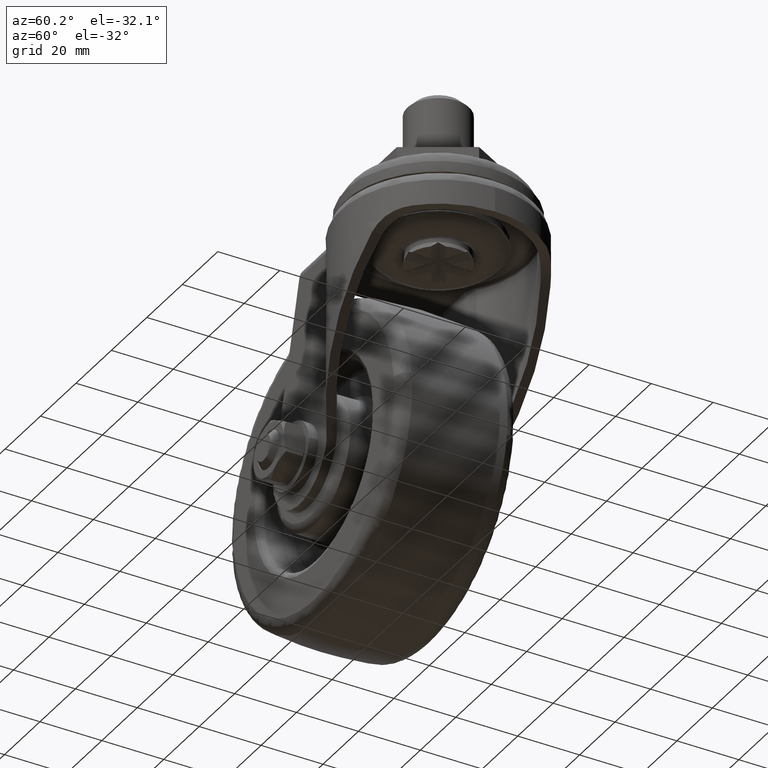
[diagram: clean part render]
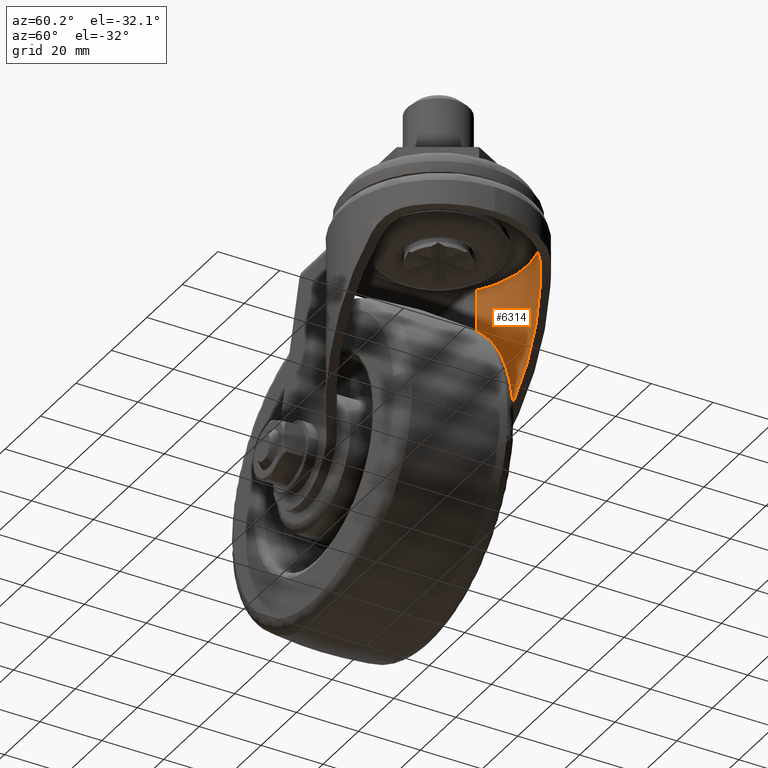
[diagram: same view with one face highlighted and labeled with its STEP entity id]
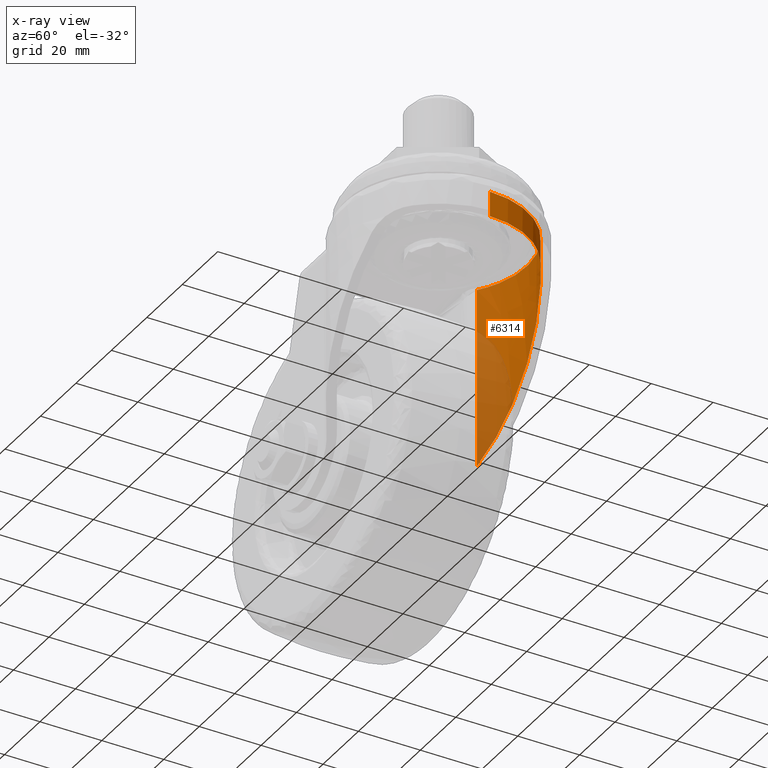
[diagram: x-ray of the same camera — body ghosted, the highlighted face saturated]
A machine part, auxiliary view. The second image highlights one B-rep face of the part: STEP entity #6314.
The next image is the same camera in x-ray: the body ghosted, the highlighted face saturated — about 33% of this face is hidden behind the body in this view.
In plain terms, the highlighted face is a freeform B-spline surface patch.
Its self-contained STEP definition (entity closure, byte-faithful):
#6098=CARTESIAN_POINT('',(-20.389273447257867,20.405900910358383,-74.928917047550357));
#6099=CARTESIAN_POINT('',(-11.899244983950865,28.600000000000005,-74.928917047550371));
#6100=CARTESIAN_POINT('',(-5.878110E-015,28.600000000000001,-74.928917047550371));
#6101=CARTESIAN_POINT('',(29.100000000000001,28.600000000000001,-74.928917047550357));
#6102=CARTESIAN_POINT('',(29.100000000000005,-0.286667730798144,-74.928917047550385));
#6103=CARTESIAN_POINT('',(29.100000000000009,-0.570964925784177,-74.928917047550371));
#6104=CARTESIAN_POINT('',(-20.389273447257867,20.405900910358383,-10.682357962086583));
#6105=CARTESIAN_POINT('',(-11.899244983950865,28.600000000000005,-10.682357962086584));
#6106=CARTESIAN_POINT('',(-5.878110E-015,28.600000000000001,-10.682357962086590));
#6107=CARTESIAN_POINT('',(29.100000000000001,28.600000000000001,-10.682357962086584));
#6108=CARTESIAN_POINT('',(29.100000000000005,-0.286667730798144,-10.682357962086590));
#6109=CARTESIAN_POINT('',(29.100000000000009,-0.570964925784177,-10.682357962086586));
#6117=(BOUNDED_SURFACE()B_SPLINE_SURFACE(2,1,((#6098,#6104),(#6099,#6105),(#6100,#6106),(#6101,#6107),(#6102,#6108),(#6103,#6109)),.UNSPECIFIED.,.F.,.F.,.U.)B_SPLINE_SURFACE_WITH_KNOTS((3,2,1,3),(2,2),(0.0,23.642487302321101,71.451058067198247,72.131577284920269),(0.0,64.246559085463787),.UNSPECIFIED.)GEOMETRIC_REPRESENTATION_ITEM()RATIONAL_B_SPLINE_SURFACE(((0.853570956100934,0.853570956100934),(0.855157263730203,0.855157263730203),(1.0,1.0),(0.707106781186547,0.707106781186547),(1.004169115724527,1.004169115724527),(1.008338231449054,1.008338231449054)))REPRESENTATION_ITEM('')SURFACE());
#6118=CARTESIAN_POINT('',(29.100000014363751,-0.000000456605498,-13.599999999999859));
#6119=VERTEX_POINT('',#6118);
#6120=CARTESIAN_POINT('',(-17.811575745032101,22.616608977692000,-13.600000000000000));
#6121=VERTEX_POINT('',#6120);
#6122=CARTESIAN_POINT('',(29.100000014363751,-0.000000456605498,-13.599999999999859));
#6123=CARTESIAN_POINT('',(29.100004300536568,1.330354462744408,-13.599999999999859));
#6124=CARTESIAN_POINT('',(29.006029683502451,2.661908366572782,-13.599999999999859));
#6125=CARTESIAN_POINT('',(28.790718222438070,4.162048233735758,-13.599999999999859));
#6126=CARTESIAN_POINT('',(28.765134225590540,4.329554993899709,-13.599999999999859));
#6127=CARTESIAN_POINT('',(28.710968581435448,4.663918174025558,-13.599999999999859));
#6128=CARTESIAN_POINT('',(28.625314448480509,5.163977922736793,-13.599999999999859));
#6129=CARTESIAN_POINT('',(28.526564030938300,5.659623296708984,-13.599999999999859));
#6130=CARTESIAN_POINT('',(28.311855489102829,6.645113829676732,-13.599999999999859));
#6131=CARTESIAN_POINT('',(28.145794312810771,7.294381132094022,-13.599999999999870));
#6132=CARTESIAN_POINT('',(27.580059350973681,9.219413425776082,-13.599999999999870));
#6133=CARTESIAN_POINT('',(27.113161689848329,10.472519213489640,-13.599999999999870));
#6134=CARTESIAN_POINT('',(26.416376474492260,12.000757461671270,-13.599999999999870));
#6135=CARTESIAN_POINT('',(26.271335225656401,12.304489131689690,-13.599999999999870));
#6136=CARTESIAN_POINT('',(26.045148446656601,12.757179433090320,-13.599999999999870));
#6137=CARTESIAN_POINT('',(25.968315020141699,12.907591548572849,-13.599999999999870));
#6138=CARTESIAN_POINT('',(25.811751757268681,13.207439484439780,-13.599999999999870));
#6139=CARTESIAN_POINT('',(25.731940015483339,13.357023057606090,-13.599999999999870));
#6140=CARTESIAN_POINT('',(25.326883075339811,14.100116513792230,-13.599999999999870));
#6141=CARTESIAN_POINT('',(24.983505485758439,14.679611178205390,-13.599999999999870));
#6142=CARTESIAN_POINT('',(23.897085336234479,16.374478939868869,-13.599999999999870));
#6143=CARTESIAN_POINT('',(23.098020423768880,17.446441171891070,-13.599999999999881));
#6144=CARTESIAN_POINT('',(21.788914382545350,18.968753037605769,-13.599999999999870));
#6145=CARTESIAN_POINT('',(21.334060196777418,19.461866190440091,-13.599999999999870));
#6146=CARTESIAN_POINT('',(20.623646447118080,20.179736497631659,-13.599999999999881));
#6147=CARTESIAN_POINT('',(20.382148814068849,20.415390027402399,-13.599999999999881));
#6148=CARTESIAN_POINT('',(20.012771792718802,20.763344950908671,-13.599999999999881));
#6149=CARTESIAN_POINT('',(19.888347462721530,20.878506410717499,-13.599999999999881));
#6150=CARTESIAN_POINT('',(19.637984580824799,21.106179977123539,-13.599999999999881));
#6151=CARTESIAN_POINT('',(19.511979367886308,21.218758564592200,-13.599999999999881));
#6152=CARTESIAN_POINT('',(18.370583654707449,22.220741599454019,-13.599999999999881));
#6153=CARTESIAN_POINT('',(17.304009282091350,23.031969888077761,-13.599999999999881));
#6154=CARTESIAN_POINT('',(15.070613451020980,24.501313155704601,-13.599999999999890));
#6155=CARTESIAN_POINT('',(13.903784468758779,25.159416643150291,-13.599999999999890));
#6156=CARTESIAN_POINT('',(12.533483192938521,25.811778659170798,-13.599999999999890));
#6157=CARTESIAN_POINT('',(12.380423384559901,25.883035161177808,-13.599999999999890));
#6158=CARTESIAN_POINT('',(12.072684541481561,26.023075024960640,-13.599999999999890));
#6159=CARTESIAN_POINT('',(11.917860523998041,26.091920686709049,-13.599999999999890));
#6160=CARTESIAN_POINT('',(11.452106050358161,26.294216918280391,-13.599999999999890));
#6161=CARTESIAN_POINT('',(11.140148865830909,26.423331923921001,-13.599999999999890));
#6162=CARTESIAN_POINT('',(10.199985495686260,26.793709359943250,-13.599999999999890));
#6163=CARTESIAN_POINT('',(9.567492778756275,27.018025104520270,-13.599999999999890));
#6164=CARTESIAN_POINT('',(7.653227756565437,27.624605895426360,-13.599999999999900));
#6165=CARTESIAN_POINT('',(6.354746771008358,27.940813625351080,-13.599999999999900));
#6166=CARTESIAN_POINT('',(4.373557660411045,28.282811839743069,-13.599999999999900));
#6167=CARTESIAN_POINT('',(3.707563810937135,28.374681761363512,-13.599999999999900));
#6168=CARTESIAN_POINT('',(2.867920255361441,28.461246914378531,-13.599999999999900));
#6169=CARTESIAN_POINT('',(2.699633558514718,28.477144658057622,-13.599999999999900));
#6170=CARTESIAN_POINT('',(2.362338594923928,28.506087438309532,-13.599999999999900));
#6171=CARTESIAN_POINT('',(2.193437271904225,28.519120238906929,-13.599999999999900));
#6172=CARTESIAN_POINT('',(1.687561724386478,28.553799838094740,-13.599999999999900));
#6173=CARTESIAN_POINT('',(1.350817975788139,28.571082467345601,-13.599999999999900));
#6174=CARTESIAN_POINT('',(-0.330403943377625,28.628727853997500,-13.599999999999911));
#6175=CARTESIAN_POINT('',(-1.667427494999753,28.583200416211088,-13.599999999999900));
#6176=CARTESIAN_POINT('',(-4.325899604073903,28.312694478265019,-13.599999999999911));
#6177=CARTESIAN_POINT('',(-5.647349307410723,28.087729180695149,-13.599999999999911));
#6178=CARTESIAN_POINT('',(-7.289067974901831,27.690228298734770,-13.599999999999911));
#6179=CARTESIAN_POINT('',(-7.617385849150148,27.604734686224720,-13.599999999999911));
#6180=CARTESIAN_POINT('',(-8.268218568135630,27.423247613747801,-13.599999999999911));
#6181=CARTESIAN_POINT('',(-8.591216148818599,27.327155012697400,-13.599999999999911));
#6182=CARTESIAN_POINT('',(-9.553046640953660,27.023038084929571,-13.599999999999911));
#6183=CARTESIAN_POINT('',(-10.184725929265589,26.799193711475251,-13.599999999999911));
#6184=CARTESIAN_POINT('',(-12.051568593156540,26.065307656166610,-13.599999999999911));
#6185=CARTESIAN_POINT('',(-13.258670990812609,25.493209870219960,-13.599999999999911));
#6186=CARTESIAN_POINT('',(-15.012397533607020,24.509170530711430,-13.599999999999920));
#6187=CARTESIAN_POINT('',(-15.587452142737970,24.160102189828120,-13.599999999999920));
#6188=CARTESIAN_POINT('',(-16.435339898592630,23.604003940433032,-13.599999999999911));
#6189=CARTESIAN_POINT('',(-16.715663305149029,23.413096929441281,-13.599999999999920));
#6190=CARTESIAN_POINT('',(-17.268797501784221,23.022063524922419,-13.599999999999920));
#6191=CARTESIAN_POINT('',(-17.541915834843529,22.821744257982491,-13.600000000000000));
#6192=CARTESIAN_POINT('',(-17.811575745032101,22.616608977692000,-13.600000000000000));
#6193=B_SPLINE_CURVE_WITH_KNOTS('',3,(#6122,#6123,#6124,#6125,#6126,#6127,#6128,#6129,#6130,#6131,#6132,#6133,#6134,#6135,#6136,#6137,#6138,#6139,#6140,#6141,#6142,#6143,#6144,#6145,#6146,#6147,#6148,#6149,#6150,#6151,#6152,#6153,#6154,#6155,#6156,#6157,#6158,#6159,#6160,#6161,#6162,#6163,#6164,#6165,#6166,#6167,#6168,#6169,#6170,#6171,#6172,#6173,#6174,#6175,#6176,#6177,#6178,#6179,#6180,#6181,#6182,#6183,#6184,#6185,#6186,#6187,#6188,#6189,#6190,#6191,#6192),.UNSPECIFIED.,.F.,.U.,(4,2,2,1,2,2,2,2,2,2,2,2,2,2,2,2,2,2,2,2,2,2,2,2,2,2,2,2,2,2,2,2,2,2,2,4),(0.500139110236038,0.531249999999998,0.535156249999998,0.539062499999998,0.546874999999998,0.562499999999998,0.593749999999998,0.601562499999998,0.605468749999998,0.609374999999998,0.624999999999998,0.656249999999997,0.671874999999997,0.679687499999997,0.683593749999997,0.687499999999997,0.718749999999998,0.749999999999999,0.753906249999999,0.757812499999999,0.765624999999999,0.781249999999999,0.812499999999999,0.828124999999999,0.832031249999999,0.835937499999999,0.843749999999999,0.874999999999999,0.906250000000000,0.914062500000000,0.921875000000000,0.937500000000000,0.968750000000000,0.984375000000000,0.992187500000000,1.0),.UNSPECIFIED.);
#6194=EDGE_CURVE('',#6119,#6121,#6193,.T.);
#6195=ORIENTED_EDGE('',*,*,#6194,.T.);
#6196=CARTESIAN_POINT('',(-17.811575745032101,22.616608977692000,-72.011274052201401));
#6197=VERTEX_POINT('',#6196);
#6198=CARTESIAN_POINT('',(-17.811575745032101,22.616608977692000,-72.011274052201401));
#6199=CARTESIAN_POINT('',(-17.811575745032101,22.616608977692000,-13.600000000000000));
#6200=QUASI_UNIFORM_CURVE('',1,(#6198,#6199),.UNSPECIFIED.,.F.,.U.);
#6201=EDGE_CURVE('',#6197,#6121,#6200,.T.);
#6202=ORIENTED_EDGE('',*,*,#6201,.F.);
#6203=CARTESIAN_POINT('',(12.862751000000200,25.654295218901851,-27.145141999999950));
#6204=VERTEX_POINT('',#6203);
#6205=CARTESIAN_POINT('',(-17.811575745032101,22.616608977691989,-72.011274052201429));
#6206=CARTESIAN_POINT('',(-17.212029133543261,23.072695171926881,-71.134340789212558));
#6207=CARTESIAN_POINT('',(-16.606784214412251,23.496407925512440,-70.249072835611756));
#6208=CARTESIAN_POINT('',(-15.386095250639940,24.285889775528631,-68.463619068410708));
#6209=CARTESIAN_POINT('',(-14.770647020635691,24.651635093917140,-67.563427133044584));
#6210=CARTESIAN_POINT('',(-13.530396844934931,25.329985047735342,-65.749361950024138));
#6211=CARTESIAN_POINT('',(-12.905592390200599,25.642575428724641,-64.835485032498852));
#6212=CARTESIAN_POINT('',(-11.647233354839720,26.218044644919100,-62.994932732236052));
#6213=CARTESIAN_POINT('',(-11.013677232515249,26.480914721371700,-62.068255094517539));
#6214=CARTESIAN_POINT('',(-9.738235028884363,26.959330396616881,-60.202715915493158));
#6215=CARTESIAN_POINT('',(-9.096348008911425,27.174870662621721,-59.263853001236583));
#6216=CARTESIAN_POINT('',(-8.288953461425006,27.415686574042532,-58.082908731885340));
#6217=CARTESIAN_POINT('',(-8.127222435691479,27.462417424040702,-57.846351117505883));
#6218=CARTESIAN_POINT('',(-7.803259169523124,27.553031604141161,-57.372502781704164));
#6219=CARTESIAN_POINT('',(-7.641046889640424,27.596907428783009,-57.135241255796970));
#6220=CARTESIAN_POINT('',(-7.154671361731119,27.724035156249741,-56.423838888484312));
#6221=CARTESIAN_POINT('',(-6.830434909464416,27.802884202891800,-55.949590974114329));
#6222=CARTESIAN_POINT('',(-5.209320374011120,28.168368298290989,-53.578450462247382));
#6223=CARTESIAN_POINT('',(-3.912644432760205,28.369159766162099,-51.681853529814283));
#6224=CARTESIAN_POINT('',(-1.319696481510518,28.599205286814598,-47.889250479313958));
#6225=CARTESIAN_POINT('',(-0.023424614958093,28.628398422274000,-45.993244571059897));
#6226=CARTESIAN_POINT('',(2.568719014638623,28.516872805534430,-42.201817970226912));
#6227=CARTESIAN_POINT('',(3.864590839553958,28.376180328121219,-40.306397187151497));
#6228=CARTESIAN_POINT('',(5.808085063635846,28.032001976798689,-37.463724576106479));
#6229=CARTESIAN_POINT('',(6.455864043686376,27.895011279837220,-36.516243723432517));
#6230=CARTESIAN_POINT('',(7.427450355725854,27.654635195335779,-35.095142613751811));
#6231=CARTESIAN_POINT('',(7.751298752717838,27.568688875517690,-34.621462292579238));
#6232=CARTESIAN_POINT('',(8.237050208503469,27.430792002053209,-33.910972731032267));
#6233=CARTESIAN_POINT('',(8.398968747725835,27.383326277887580,-33.674140848043223));
#6234=CARTESIAN_POINT('',(8.722159553714352,27.285555950917171,-33.201422359384402));
#6235=CARTESIAN_POINT('',(8.883511316656394,27.235229304963291,-32.965419477782881));
#6236=CARTESIAN_POINT('',(9.689042733540266,26.976334245979821,-31.787200336332230));
#6237=CARTESIAN_POINT('',(10.329545594143850,26.746012294933749,-30.850361977579681));
#6238=CARTESIAN_POINT('',(11.602387833340160,26.237069617268830,-28.988625664340159));
#6239=CARTESIAN_POINT('',(12.234728322051890,25.958455458605808,-28.063726086125659));
#6240=CARTESIAN_POINT('',(12.862751000000230,25.654295218901801,-27.145141999999950));
#6241=B_SPLINE_CURVE_WITH_KNOTS('',3,(#6205,#6206,#6207,#6208,#6209,#6210,#6211,#6212,#6213,#6214,#6215,#6216,#6217,#6218,#6219,#6220,#6221,#6222,#6223,#6224,#6225,#6226,#6227,#6228,#6229,#6230,#6231,#6232,#6233,#6234,#6235,#6236,#6237,#6238,#6239,#6240),.UNSPECIFIED.,.F.,.U.,(4,2,2,2,2,2,2,2,2,2,2,2,2,2,2,2,2,4),(0.0,0.062500000000001,0.125000000000001,0.187500000000002,0.250000000000002,0.312500000000002,0.328125000000002,0.343750000000002,0.375000000000003,0.500000000000002,0.625000000000002,0.750000000000002,0.812500000000002,0.843750000000002,0.859375000000002,0.875000000000002,0.937500000000001,1.0),.UNSPECIFIED.);
#6242=EDGE_CURVE('',#6197,#6204,#6241,.T.);
#6243=ORIENTED_EDGE('',*,*,#6242,.T.);
#6244=CARTESIAN_POINT('',(23.181616000000201,17.288022740067099,-21.699999999999999));
#6245=VERTEX_POINT('',#6244);
#6246=CARTESIAN_POINT('',(23.181616000000218,17.288022740067120,-21.700000000000081));
#6247=CARTESIAN_POINT('',(22.801803220876788,17.779961316701719,-21.700000005464702));
#6248=CARTESIAN_POINT('',(22.405262614446951,18.260519236943949,-21.717215666314029));
#6249=CARTESIAN_POINT('',(21.888262323521271,18.846879614984360,-21.766656718683130));
#6250=CARTESIAN_POINT('',(21.783794766333230,18.963434111022039,-21.777947106709409));
#6251=CARTESIAN_POINT('',(21.572709032795149,19.195102223961129,-21.803519831018459));
#6252=CARTESIAN_POINT('',(21.466135642540749,19.310160384138960,-21.817801547863020));
#6253=CARTESIAN_POINT('',(21.144939436236989,19.651323407191938,-21.865139004839001));
#6254=CARTESIAN_POINT('',(20.928288692419049,19.874027723865382,-21.902747578955591));
#6255=CARTESIAN_POINT('',(20.271365528529689,20.528064623663131,-22.035294963032769));
#6256=CARTESIAN_POINT('',(19.824110412759840,20.945331704546881,-22.149883180546169));
#6257=CARTESIAN_POINT('',(18.914304414061782,21.742831666760399,-22.441249614346770));
#6258=CARTESIAN_POINT('',(18.451738019133010,22.123066024503569,-22.617970803126521));
#6259=CARTESIAN_POINT('',(17.866376664871421,22.575292558174620,-22.885637418231219));
#6260=CARTESIAN_POINT('',(17.748816254252869,22.664681092474879,-22.941587539647710));
#6261=CARTESIAN_POINT('',(17.514023989142871,22.840429016985809,-23.057937133599481));
#6262=CARTESIAN_POINT('',(17.396732950976350,22.926837584233120,-23.118358291532449));
#6263=CARTESIAN_POINT('',(17.162463410237692,23.096759168020011,-23.243839319240461));
#6264=CARTESIAN_POINT('',(17.045385524910650,23.180341806462369,-23.308956958878479));
#6265=CARTESIAN_POINT('',(16.812107033360441,23.344323816864410,-23.443722837014349));
#6266=CARTESIAN_POINT('',(16.696094963791658,23.424593237347519,-23.513257761973598));
#6267=CARTESIAN_POINT('',(16.119432688472909,23.817554385760921,-23.871849825417438));
#6268=CARTESIAN_POINT('',(15.668930736805070,24.105132596335430,-24.193566053465389));
#6269=CARTESIAN_POINT('',(15.014915032079580,24.500040427575311,-24.732435208239750));
#6270=CARTESIAN_POINT('',(14.800541278989179,24.625591065424882,-24.921458523454980));
#6271=CARTESIAN_POINT('',(14.485230919664099,24.805172969321148,-25.219809550297722));
#6272=CARTESIAN_POINT('',(14.381170194270300,24.863575673857039,-25.321730986490628));
#6273=CARTESIAN_POINT('',(14.175282501725350,24.977521737107221,-25.530659546446099));
#6274=CARTESIAN_POINT('',(14.073226894767320,25.033187009171868,-25.637921131815581));
#6275=CARTESIAN_POINT('',(13.572288945728710,25.302698356175021,-26.183639932960599));
#6276=CARTESIAN_POINT('',(13.201483924110450,25.490242086728959,-26.649690585404791));
#6277=CARTESIAN_POINT('',(12.862751000000250,25.654295218901790,-27.145141999999950));
#6278=B_SPLINE_CURVE_WITH_KNOTS('',3,(#6246,#6247,#6248,#6249,#6250,#6251,#6252,#6253,#6254,#6255,#6256,#6257,#6258,#6259,#6260,#6261,#6262,#6263,#6264,#6265,#6266,#6267,#6268,#6269,#6270,#6271,#6272,#6273,#6274,#6275,#6276,#6277),.UNSPECIFIED.,.F.,.U.,(4,2,2,2,2,2,2,2,2,2,2,2,2,2,2,4),(0.0,0.125000000000002,0.156250000000003,0.187500000000003,0.250000000000003,0.375000000000003,0.500000000000003,0.531250000000003,0.562500000000002,0.593750000000002,0.625000000000002,0.750000000000001,0.812500000000000,0.843750000000000,0.875000000000000,1.0),.UNSPECIFIED.);
#6279=EDGE_CURVE('',#6245,#6204,#6278,.T.);
#6280=ORIENTED_EDGE('',*,*,#6279,.F.);
#6281=CARTESIAN_POINT('',(29.100000000714680,0.000002647915596,-21.700000000000081));
#6282=VERTEX_POINT('',#6281);
#6283=CARTESIAN_POINT('',(23.181616000000201,17.288022740067099,-21.699999999999999));
#6284=CARTESIAN_POINT('',(23.301056539995571,17.133321759818479,-21.699999999999999));
#6285=CARTESIAN_POINT('',(23.419030401587982,16.977240202057271,-21.699999999999999));
#6286=CARTESIAN_POINT('',(23.651134810653190,16.663546772231200,-21.699999999999999));
#6287=CARTESIAN_POINT('',(23.993921145452081,16.190202013547339,-21.700000000000010));
#6288=CARTESIAN_POINT('',(24.320732521143430,15.708514374585350,-21.700000000000010));
#6289=CARTESIAN_POINT('',(24.953313424321038,14.734150046910280,-21.700000000000010));
#6290=CARTESIAN_POINT('',(25.740710768632340,13.405728851916111,-21.700000000000010));
#6291=CARTESIAN_POINT('',(26.417078603454609,12.019322788305381,-21.700000000000031));
#6292=CARTESIAN_POINT('',(27.037370636067632,10.603631284827070,-21.700000000000038));
#6293=CARTESIAN_POINT('',(27.319482500207979,9.881144771027335,-21.700000000000038));
#6294=CARTESIAN_POINT('',(27.699318601081789,8.774785136676252,-21.700000000000049));
#6295=CARTESIAN_POINT('',(27.818878475024711,8.401529096752491,-21.700000000000049));
#6296=CARTESIAN_POINT('',(28.041415615810148,7.653658744306554,-21.700000000000049));
#6297=CARTESIAN_POINT('',(28.144622732000322,7.278465944122128,-21.700000000000060));
#6298=CARTESIAN_POINT('',(28.430374479297289,6.149163775901439,-21.700000000000060));
#6299=CARTESIAN_POINT('',(28.747802768808182,4.633509708709880,-21.700000000000060));
#6300=CARTESIAN_POINT('',(28.939490968487249,3.098239608738750,-21.700000000000070));
#6301=CARTESIAN_POINT('',(29.067570314285309,1.555403521955185,-21.700000000000081));
#6302=CARTESIAN_POINT('',(29.100000241560551,0.780169197072996,-21.700000000000070));
#6303=CARTESIAN_POINT('',(29.100000000714680,0.000002647915596,-21.700000000000081));
#6304=B_SPLINE_CURVE_WITH_KNOTS('',3,(#6283,#6284,#6285,#6286,#6287,#6288,#6289,#6290,#6291,#6292,#6293,#6294,#6295,#6296,#6297,#6298,#6299,#6300,#6301,#6302,#6303),.UNSPECIFIED.,.F.,.U.,(4,2,1,2,1,2,2,2,2,1,2,4),(0.0,0.015625000000000,0.031250000000000,0.062500000000000,0.125000000000000,0.187500000000000,0.250000000000000,0.281250000000000,0.312500000000000,0.374999999999999,0.437499999999999,0.499811739248937),.UNSPECIFIED.);
#6305=EDGE_CURVE('',#6245,#6282,#6304,.T.);
#6306=ORIENTED_EDGE('',*,*,#6305,.T.);
#6307=CARTESIAN_POINT('',(29.100000000714680,0.000002647915596,-21.700000000000081));
#6308=CARTESIAN_POINT('',(29.100000014363751,-0.000000456605498,-13.599999999999859));
#6309=QUASI_UNIFORM_CURVE('',1,(#6307,#6308),.UNSPECIFIED.,.F.,.U.);
#6310=EDGE_CURVE('',#6282,#6119,#6309,.T.);
#6311=ORIENTED_EDGE('',*,*,#6310,.T.);
#6312=EDGE_LOOP('',(#6195,#6202,#6243,#6280,#6306,#6311));
#6313=FACE_OUTER_BOUND('',#6312,.T.);
#6314=ADVANCED_FACE('',(#6313),#6117,.T.);